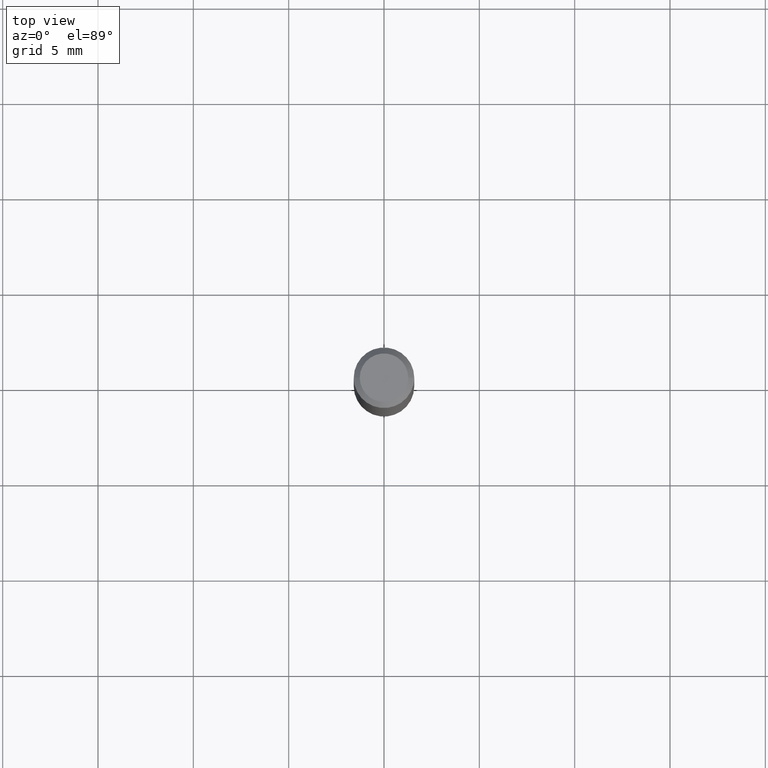
[diagram: clean part render]
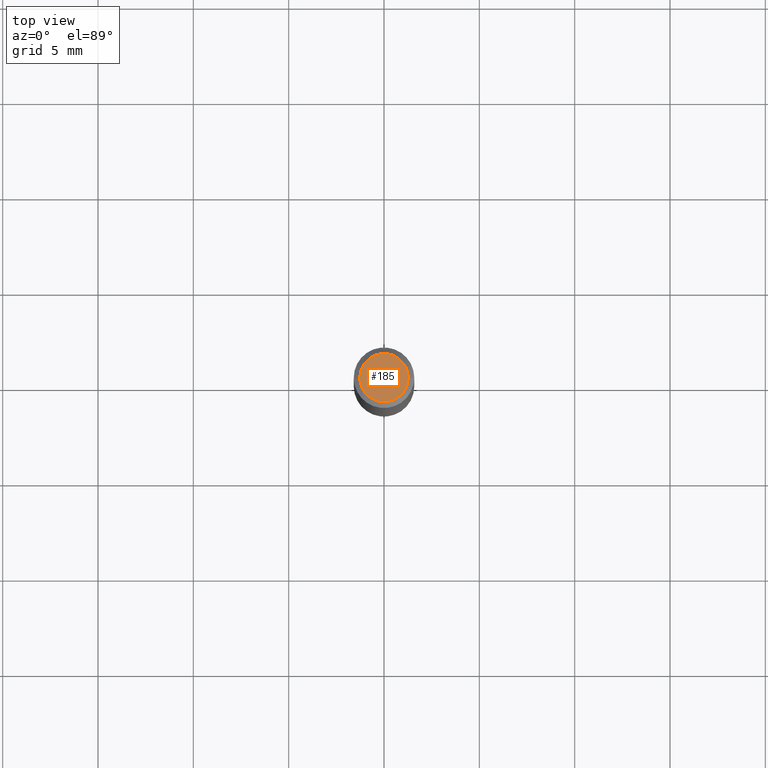
[diagram: same view with one face highlighted and labeled with its STEP entity id]
A machine part, top view. The second image highlights one B-rep face of the part: STEP entity #185.
In plain terms, the highlighted planar face has unit normal (0, -0, -1).
Its self-contained STEP definition (entity closure, byte-faithful):
#2 = CARTESIAN_POINT ( 'NONE',  ( 0.04999999999999999584, -4.077247707424184705E-16, -1.592040838888913461E-18 ) ) ;
#10 = ORIENTED_EDGE ( 'NONE', *, *, #288, .T. ) ;
#25 = DIRECTION ( 'NONE',  ( 1.000000000000000000, -6.982962677686265922E-15, 4.875957971899673662E-29 ) ) ;
#88 = CIRCLE ( 'NONE', #363, 0.04999999999999999584 ) ;
#110 = DIRECTION ( 'NONE',  ( -2.445468806185136597E-29, 3.491481338843145583E-15, 1.000000000000000000 ) ) ;
#117 = CIRCLE ( 'NONE', #456, 0.04999999999999999584 ) ;
#158 = ORIENTED_EDGE ( 'NONE', *, *, #323, .T. ) ;
#165 = FACE_OUTER_BOUND ( 'NONE', #413, .T. ) ;
#177 = CARTESIAN_POINT ( 'NONE',  ( 3.893286209682126177E-47, -5.558580879666067980E-33, -1.592040838891559689E-18 ) ) ;
#183 = DIRECTION ( 'NONE',  ( 1.000000000000000000, -6.982962677686265922E-15, 4.875957971899673662E-29 ) ) ;
#185 = ADVANCED_FACE ( 'NONE', ( #165 ), #242, .F. ) ;
#242 = PLANE ( 'NONE',  #427 ) ;
#274 = VERTEX_POINT ( 'NONE', #292 ) ;
#283 = DIRECTION ( 'NONE',  ( 2.438088387897960049E-29, -3.491481338843145188E-15, -1.000000000000000000 ) ) ;
#288 = EDGE_CURVE ( 'NONE', #327, #274, #88, .T. ) ;
#290 = DIRECTION ( 'NONE',  ( -2.445468806185136597E-29, 3.491481338843145583E-15, 1.000000000000000000 ) ) ;
#292 = CARTESIAN_POINT ( 'NONE',  ( -0.04999999999999999584, 3.709698922520826725E-16, -1.592040838894077649E-18 ) ) ;
#314 = CARTESIAN_POINT ( 'NONE',  ( 1.946643104841063088E-47, -2.779290439833033990E-33, -7.960204194457798443E-19 ) ) ;
#323 = EDGE_CURVE ( 'NONE', #274, #327, #117, .T. ) ;
#327 = VERTEX_POINT ( 'NONE', #2 ) ;
#363 = AXIS2_PLACEMENT_3D ( 'NONE', #177, #290, #25 ) ;
#413 = EDGE_LOOP ( 'NONE', ( #158, #10 ) ) ;
#427 = AXIS2_PLACEMENT_3D ( 'NONE', #314, #283, #436 ) ;
#436 = DIRECTION ( 'NONE',  ( -1.000000000000000000, 6.982962677686265922E-15, -4.876176775795935793E-29 ) ) ;
#447 = CARTESIAN_POINT ( 'NONE',  ( 3.893286209682126177E-47, -5.558580879666067980E-33, -1.592040838891559689E-18 ) ) ;
#456 = AXIS2_PLACEMENT_3D ( 'NONE', #447, #110, #183 ) ;